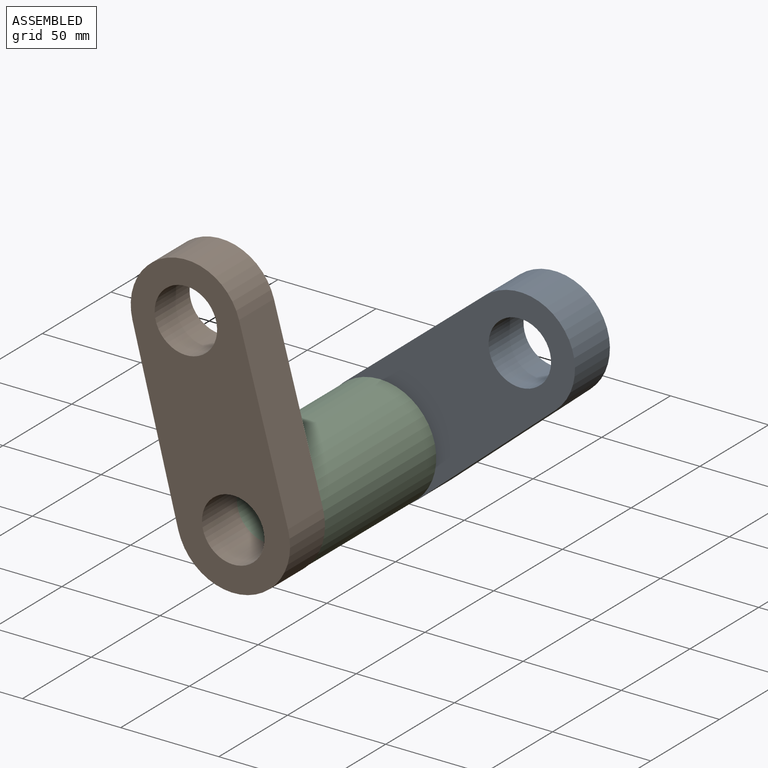
[diagram: assembled view]
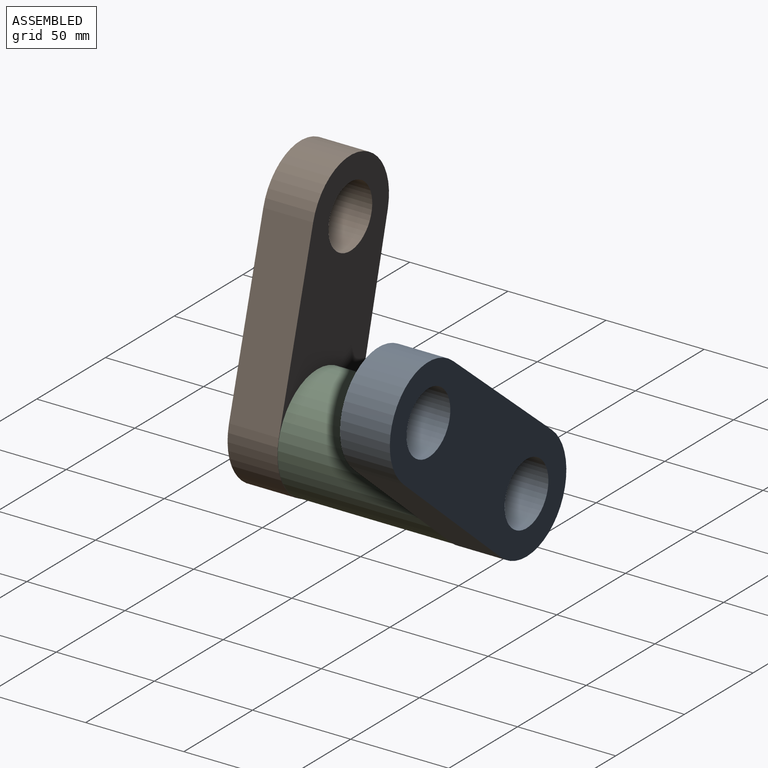
[diagram: assembled view, second angle]
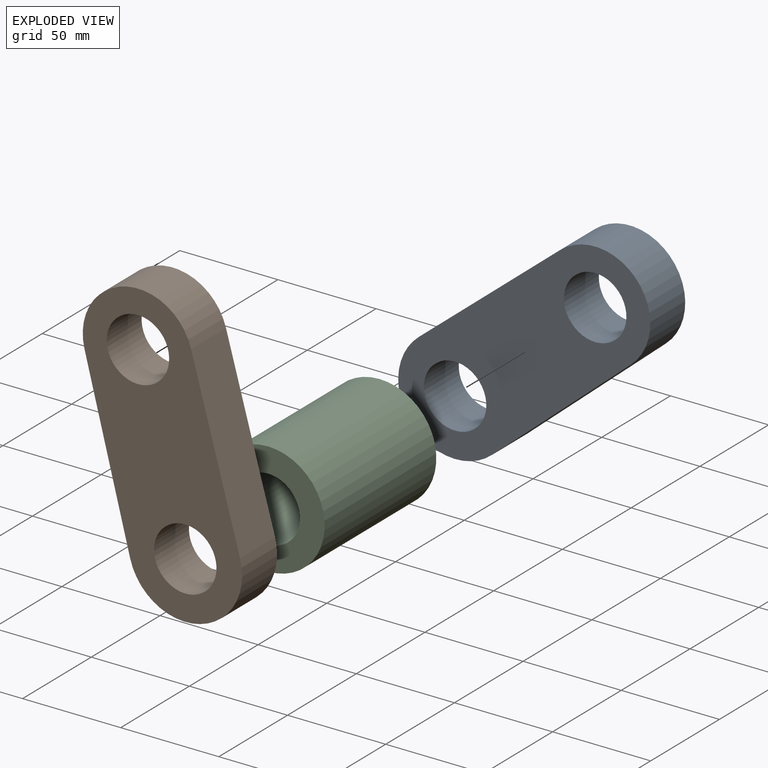
[diagram: exploded view]
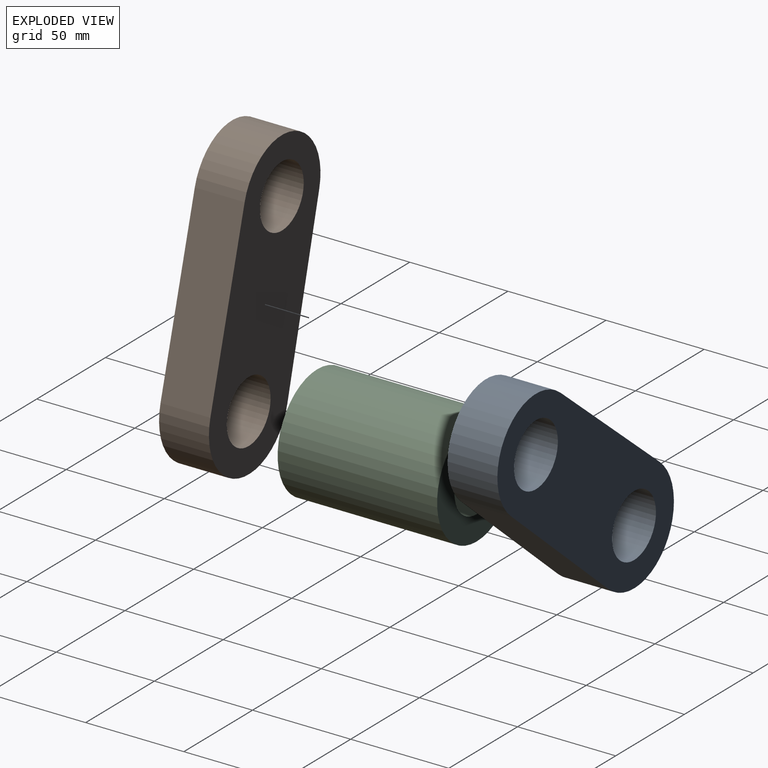
[diagram: exploded view, second angle]
ASSEMBLY  parts=3 mates=2
PART A: 8 faces, bbox 150.2x57.9x25.4 mm
  f0: plane 93.15x25.4mm, normal (0.01,1,0), area 2366.1mm2, adj f1,f3,f6,f7
  f1: cylinder r=28.97mm len=57.95mm, axis (0,0,-1), area 2325.9mm2, adj f0,f2,f6,f7
  f2: plane 93.15x25.4mm, normal (0.01,-1,0), area 2366.1mm2, adj f1,f3,f6,f7
  f3: cylinder r=28.1mm len=56.2mm, axis (0,0,-1), area 2229.2mm2, adj f0,f2,f6,f7
  f4: cylinder r=15.92mm len=31.84mm, axis (0,0,-1), area 2540.8mm2, adj f6,f7
  f5: cylinder r=15.92mm len=31.84mm, axis (0,0,-1), area 2540.8mm2, adj f6,f7
  f6: plane 150.24x57.95mm, normal (0,0,1), area 6284.3mm2, adj f0,f1,f2,f3,f4,f5
  f7: plane 150.24x57.95mm, normal (0,0,-1), area 6284.3mm2, adj f0,f1,f2,f3,f4,f5
PART B: same geometry as A
PART C: 4 faces, bbox 57.6x81.2x57.6 mm
  f0: cylinder r=16.23mm len=81.23mm, axis (0,1,0), area 8283.6mm2, adj f2,f3
  f1: cylinder r=28.8mm len=81.23mm, axis (0,1,0), area 14700.2mm2, adj f2,f3
  f2: plane 57.61x57.61mm, normal (0,-1,0), area 1778.6mm2, adj f0,f1
  f3: plane 57.61x57.61mm, normal (0,1,0), area 1778.6mm2, adj f0,f1
PLACE A rot(axis=(-0.89,-0.32,-0.32),96.7deg) t=(2.48,35.93,44.65)mm
PLACE B rot(axis=(0.48,-0.62,0.62),129deg) t=(-45.25,-45.3,59.7)mm
PLACE C rot(axis=(-1,0,0),0deg) t=(-33.2,-4.68,14.71)mm
MATE revolute C.f0 <-> A.f1  axis (0,1,0) through (-33.2,35.93,14.71)mm
MATE revolute C.f0 <-> B.f1  axis (0,-1,0) through (-33.2,-45.3,14.71)mm
